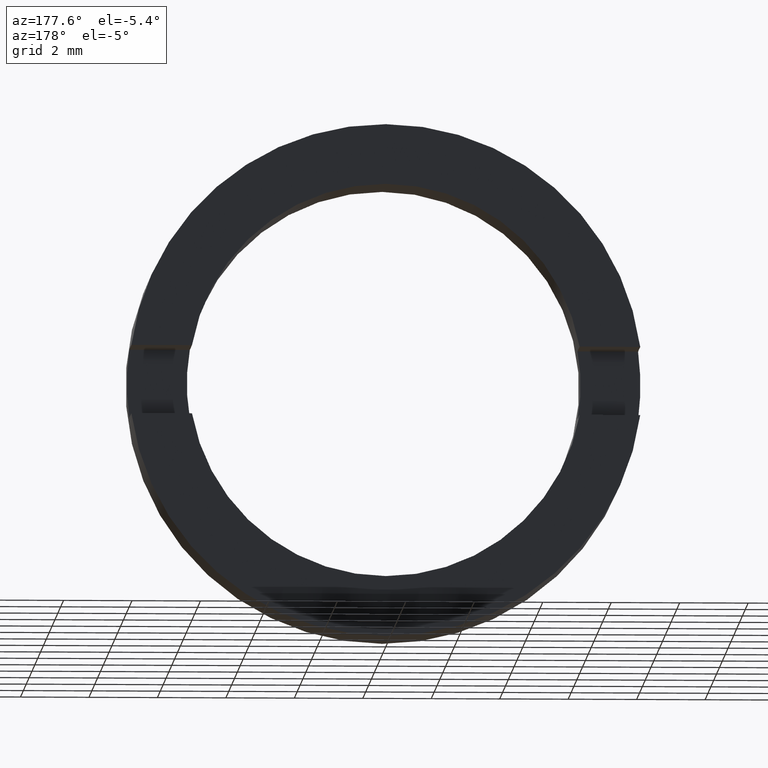
[diagram: clean part render]
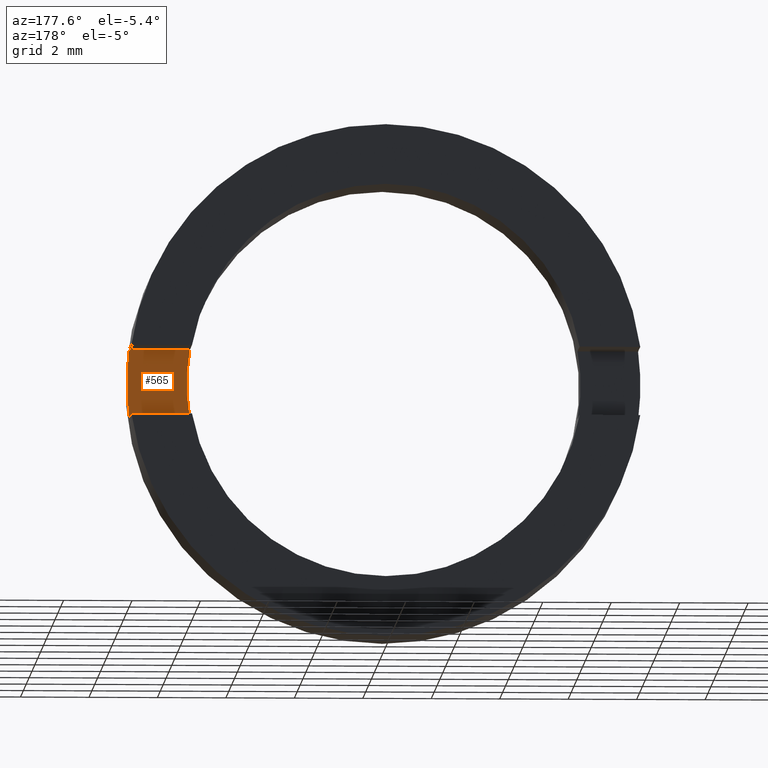
[diagram: same view with one face highlighted and labeled with its STEP entity id]
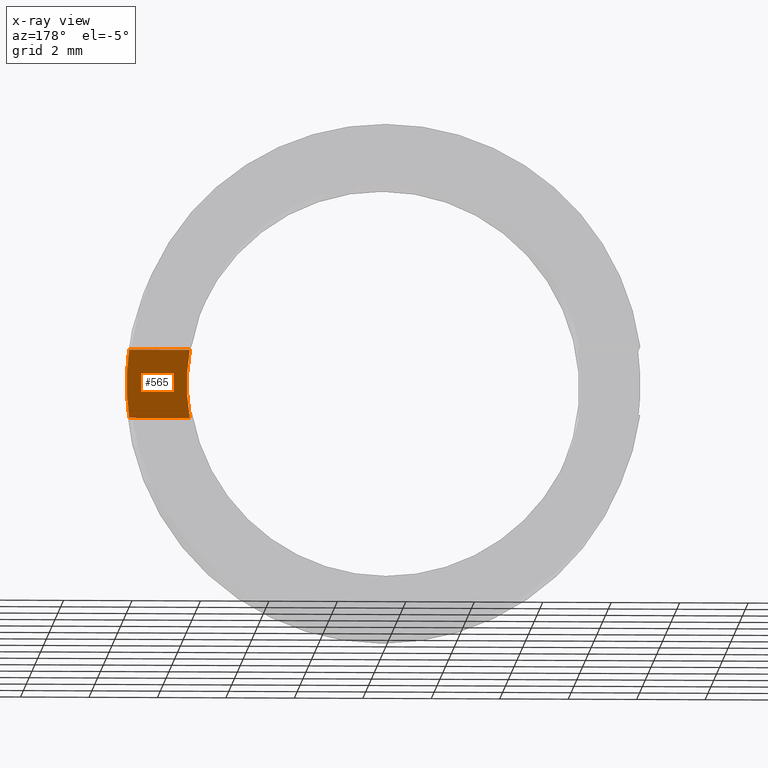
[diagram: x-ray of the same camera — body ghosted, the highlighted face saturated]
A machine part, auxiliary view. The second image highlights one B-rep face of the part: STEP entity #565.
The next image is the same camera in x-ray: the body ghosted, the highlighted face saturated — about 0% of this face is hidden behind the body in this view.
In plain terms, the highlighted planar face has unit normal (0, 1, 0).
Its self-contained STEP definition (entity closure, byte-faithful):
#37 = AXIS2_PLACEMENT_3D ( 'NONE', #351, #90, #500 ) ;
#64 = DIRECTION ( 'NONE',  ( 0.0000000000000000000, 1.000000000000000000, 0.0000000000000000000 ) ) ;
#71 = VERTEX_POINT ( 'NONE', #194 ) ;
#90 = DIRECTION ( 'NONE',  ( -0.0000000000000000000, -1.000000000000000000, -0.0000000000000000000 ) ) ;
#113 = DIRECTION ( 'NONE',  ( 0.0000000000000000000, 0.0000000000000000000, 1.000000000000000000 ) ) ;
#118 = ORIENTED_EDGE ( 'NONE', *, *, #347, .T. ) ;
#125 = CARTESIAN_POINT ( 'NONE',  ( 7.433034373659258300, -3.464249787179428400, -0.9999999999999995600 ) ) ;
#194 = CARTESIAN_POINT ( 'NONE',  ( 5.662375826453069500, -3.464249787179428400, 0.9999999999999995600 ) ) ;
#200 = EDGE_CURVE ( 'NONE', #409, #325, #208, .T. ) ;
#208 = CIRCLE ( 'NONE', #420, 7.500000000000007100 ) ;
#225 = VECTOR ( 'NONE', #307, 1000.000000000000000 ) ;
#258 = CARTESIAN_POINT ( 'NONE',  ( -26.85254027261461800, -3.464249787179431100, -1.000000000000000000 ) ) ;
#266 = PLANE ( 'NONE',  #348 ) ;
#307 = DIRECTION ( 'NONE',  ( 1.000000000000000000, 0.0000000000000000000, 0.0000000000000000000 ) ) ;
#309 = CARTESIAN_POINT ( 'NONE',  ( 5.662375826453069500, -3.464249787179428400, -0.9999999999999995600 ) ) ;
#325 = VERTEX_POINT ( 'NONE', #125 ) ;
#331 = LINE ( 'NONE', #258, #431 ) ;
#335 = CARTESIAN_POINT ( 'NONE',  ( 0.0000000000000000000, -3.464249787179428400, 0.0000000000000000000 ) ) ;
#344 = EDGE_LOOP ( 'NONE', ( #452, #118, #474, #368 ) ) ;
#347 = EDGE_CURVE ( 'NONE', #325, #581, #331, .T. ) ;
#348 = AXIS2_PLACEMENT_3D ( 'NONE', #501, #355, #543 ) ;
#351 = CARTESIAN_POINT ( 'NONE',  ( 0.0000000000000000000, -3.464249787179428400, 0.0000000000000000000 ) ) ;
#353 = CARTESIAN_POINT ( 'NONE',  ( -26.85254027261461800, -3.464249787179431100, 1.000000000000000000 ) ) ;
#355 = DIRECTION ( 'NONE',  ( 0.0000000000000000000, 1.000000000000000000, 0.0000000000000000000 ) ) ;
#368 = ORIENTED_EDGE ( 'NONE', *, *, #387, .T. ) ;
#387 = EDGE_CURVE ( 'NONE', #71, #409, #399, .T. ) ;
#399 = LINE ( 'NONE', #353, #225 ) ;
#409 = VERTEX_POINT ( 'NONE', #448 ) ;
#420 = AXIS2_PLACEMENT_3D ( 'NONE', #335, #64, #113 ) ;
#431 = VECTOR ( 'NONE', #493, 1000.000000000000000 ) ;
#445 = EDGE_CURVE ( 'NONE', #581, #71, #550, .T. ) ;
#448 = CARTESIAN_POINT ( 'NONE',  ( 7.433034373659258300, -3.464249787179428400, 0.9999999999999995600 ) ) ;
#452 = ORIENTED_EDGE ( 'NONE', *, *, #200, .T. ) ;
#474 = ORIENTED_EDGE ( 'NONE', *, *, #445, .T. ) ;
#493 = DIRECTION ( 'NONE',  ( -1.000000000000000000, -0.0000000000000000000, -0.0000000000000000000 ) ) ;
#500 = DIRECTION ( 'NONE',  ( -2.664535259100375300E-015, 0.0000000000000000000, 1.000000000000000000 ) ) ;
#501 = CARTESIAN_POINT ( 'NONE',  ( 0.0000000000000000000, -3.464249787179431100, 0.0000000000000000000 ) ) ;
#508 = FACE_OUTER_BOUND ( 'NONE', #344, .T. ) ;
#543 = DIRECTION ( 'NONE',  ( 0.0000000000000000000, -0.0000000000000000000, 1.000000000000000000 ) ) ;
#550 = CIRCLE ( 'NONE', #37, 5.750000000000008000 ) ;
#565 = ADVANCED_FACE ( 'NONE', ( #508 ), #266, .T. ) ;
#581 = VERTEX_POINT ( 'NONE', #309 ) ;